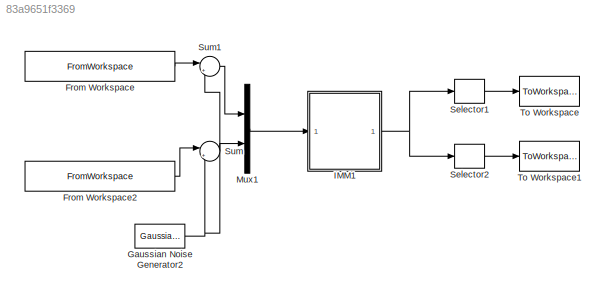
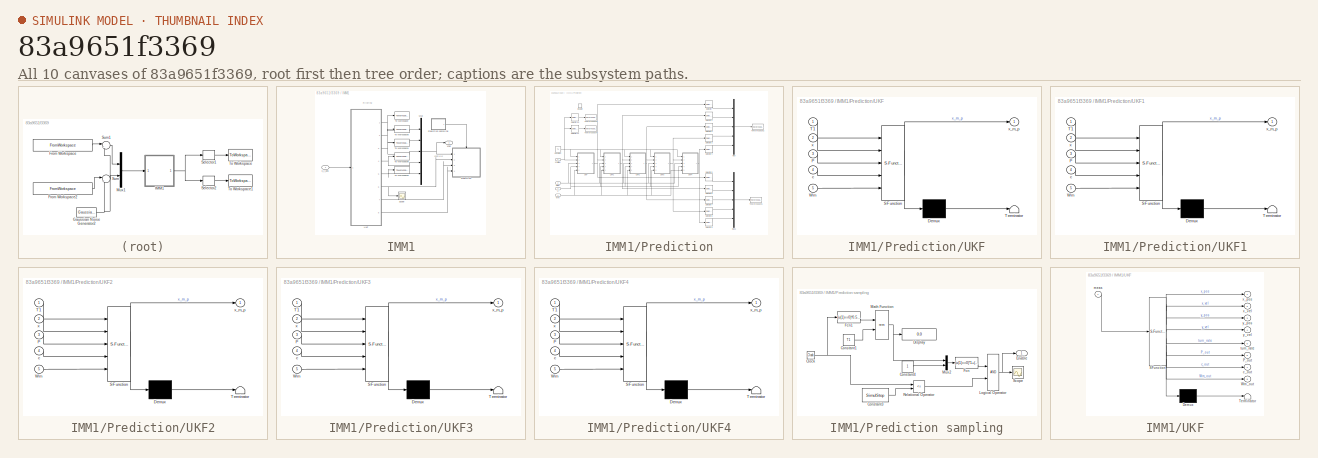
[diagram: thumbnail index - all 10 canvases of the model, root first then tree order]
MODEL slx_83a9651f3369
KIND model
BLOCK [FromWorkspace] From Workspace
  SampleTime = 0
  VariableName = [obv_traj1(:,1),obv_traj1(:,2)]
BLOCK [FromWorkspace] From Workspace2
  SampleTime = 0
  VariableName = [obv_traj1(:,1),obv_traj1(:,3)]
BLOCK [Reference] Gaussian Noise Generator2  REF=commnoisgen2/Gaussian Noise
Generator
  Ports = [0, 1]
  SourceBlock = commnoisgen2/Gaussian Noise\nGenerator
  SourceType = Gaussian Noise Generator
  Ts = 0.05
  d = noise
  frameBased = off
  m = 0
  orient = off
  outDataType = double
  s = 0
  sampPerFrame = 1
BLOCK [SubSystem] IMM1
  FunctionWithSeparateData = off
  MaskHideContents = off
  MinAlgLoopOccurrences = off
  Opaque = off
  Ports = [1, 1]
  PropExecContextOutsideSubsystem = off
  RTWSystemCode = Auto
  RequestExecContextInheritance = off
BLOCK [Mux] IMM1/Mux
  DisplayOption = bar
  Inputs = 5
  Ports = [5, 1]
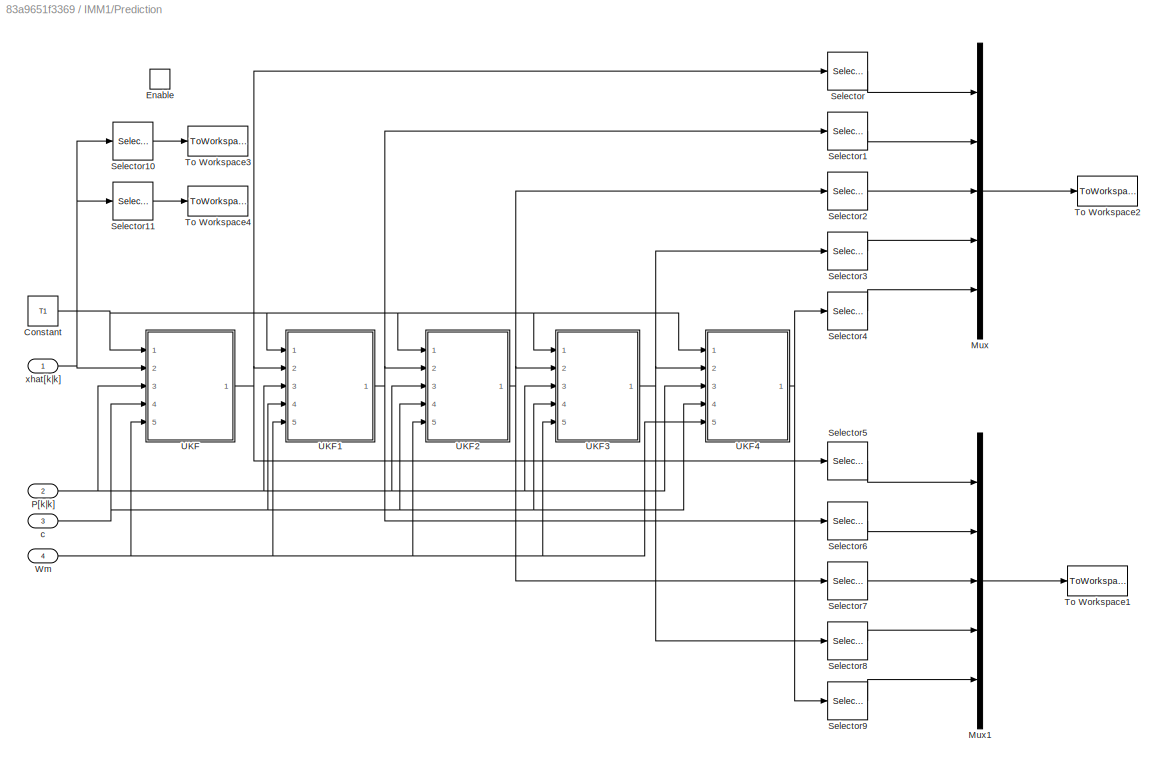
BLOCK [SubSystem] IMM1/Prediction
  FunctionWithSeparateData = off
  MaskHideContents = off
  MinAlgLoopOccurrences = off
  Opaque = off
  Ports = [4, 0, 1]
  PropExecContextOutsideSubsystem = off
  RTWSystemCode = Auto
  RequestExecContextInheritance = off
BLOCK [SubSystem] IMM1/Prediction sampling
  FunctionWithSeparateData = off
  MaskHideContents = off
  MinAlgLoopOccurrences = off
  Opaque = off
  Ports = [0, 1]
  PropExecContextOutsideSubsystem = off
  RTWSystemCode = Auto
  RequestExecContextInheritance = off
BLOCK [Clock] IMM1/Prediction sampling/Clock
BLOCK [Constant] IMM1/Prediction sampling/Constant1
  Value = T1
BLOCK [Constant] IMM1/Prediction sampling/Constant3
  Value = SimulStop
BLOCK [Constant] IMM1/Prediction sampling/Constant4
BLOCK [Display] IMM1/Prediction sampling/Display
  Decimation = 1
  Lockdown = off
  Ports = [1]
BLOCK [Outport] IMM1/Prediction sampling/Enable
  IconDisplay = Port number
BLOCK [Fcn] IMM1/Prediction sampling/Fcn
  Expr = (u(1)==0)*1+(!u(1)==0)*0
BLOCK [Fcn] IMM1/Prediction sampling/Fcn1
  Expr = (u(1)==0)*0.5+(!u(1)==0)*u(1)
BLOCK [Logic] IMM1/Prediction sampling/Logical Operator
  AllPortsSameDT = off
  OutDataTypeStr = boolean
  Ports = [2, 1]
BLOCK [Math] IMM1/Prediction sampling/Math Function
  Operator = rem
  Ports = [2, 1]
BLOCK [Mux] IMM1/Prediction sampling/Mux2
  DisplayOption = bar
  Inputs = 2
  Ports = [2, 1]
BLOCK [RelationalOperator] IMM1/Prediction sampling/Relational Operator
  InputSameDT = off
  Operator = <=
  OutDataTypeStr = boolean
  Ports = [2, 1]
BLOCK [Scope] IMM1/Prediction sampling/Scope
  DataFormat = StructureWithTime
  Floating = off
  NumInputPorts = 1
  Ports = [1]
  SampleTime = 0
  SaveName = ScopeData2
  ShowLegends = off
BLOCK [Constant] IMM1/Prediction/Constant
  Value = T1
BLOCK [EnablePort] IMM1/Prediction/Enable
  Ports = []
BLOCK [Mux] IMM1/Prediction/Mux
  DisplayOption = bar
  Inputs = 5
  Ports = [5, 1]
BLOCK [Mux] IMM1/Prediction/Mux1
  DisplayOption = bar
  Inputs = 5
  Ports = [5, 1]
BLOCK [Inport] IMM1/Prediction/P[k|k]
  IconDisplay = Port number
  Port = 2
BLOCK [Selector] IMM1/Prediction/Selector
  IndexOptions = Index vector (dialog)
  Indices = [1]
  InputPortWidth = 5
  OutputSizes = 1
  Ports = [1, 1]
BLOCK [Selector] IMM1/Prediction/Selector1
  IndexOptions = Index vector (dialog)
  Indices = [1]
  InputPortWidth = 5
  OutputSizes = 1
  Ports = [1, 1]
BLOCK [Selector] IMM1/Prediction/Selector10
  IndexOptions = Index vector (dialog)
  Indices = [1]
  InputPortWidth = 5
  OutputSizes = 1
  Ports = [1, 1]
BLOCK [Selector] IMM1/Prediction/Selector11
  IndexOptions = Index vector (dialog)
  Indices = [3]
  InputPortWidth = 5
  OutputSizes = 1
  Ports = [1, 1]
BLOCK [Selector] IMM1/Prediction/Selector2
  IndexOptions = Index vector (dialog)
  Indices = [1]
  InputPortWidth = 5
  OutputSizes = 1
  Ports = [1, 1]
BLOCK [Selector] IMM1/Prediction/Selector3
  IndexOptions = Index vector (dialog)
  Indices = [1]
  InputPortWidth = 5
  OutputSizes = 1
  Ports = [1, 1]
BLOCK [Selector] IMM1/Prediction/Selector4
  IndexOptions = Index vector (dialog)
  Indices = [1]
  InputPortWidth = 5
  OutputSizes = 1
  Ports = [1, 1]
BLOCK [Selector] IMM1/Prediction/Selector5
  IndexOptions = Index vector (dialog)
  Indices = [3]
  InputPortWidth = 5
  OutputSizes = 1
  Ports = [1, 1]
BLOCK [Selector] IMM1/Prediction/Selector6
  IndexOptions = Index vector (dialog)
  Indices = [3]
  InputPortWidth = 5
  OutputSizes = 1
  Ports = [1, 1]
BLOCK [Selector] IMM1/Prediction/Selector7
  IndexOptions = Index vector (dialog)
  Indices = [3]
  InputPortWidth = 5
  OutputSizes = 1
  Ports = [1, 1]
BLOCK [Selector] IMM1/Prediction/Selector8
  IndexOptions = Index vector (dialog)
  Indices = [3]
  InputPortWidth = 5
  OutputSizes = 1
  Ports = [1, 1]
BLOCK [Selector] IMM1/Prediction/Selector9
  IndexOptions = Index vector (dialog)
  Indices = [3]
  InputPortWidth = 5
  OutputSizes = 1
  Ports = [1, 1]
BLOCK [ToWorkspace] IMM1/Prediction/To Workspace1
  MaxDataPoints = inf
  Ports = [1]
  SampleTime = -1
  VariableName = y_pos_pre
BLOCK [ToWorkspace] IMM1/Prediction/To Workspace2
  MaxDataPoints = inf
  Ports = [1]
  SampleTime = -1
  VariableName = x_pos_pre
BLOCK [ToWorkspace] IMM1/Prediction/To Workspace3
  MaxDataPoints = inf
  Ports = [1]
  SampleTime = -1
  VariableName = x_pos_est
BLOCK [ToWorkspace] IMM1/Prediction/To Workspace4
  MaxDataPoints = inf
  Ports = [1]
  SampleTime = -1
  VariableName = y_pos_est
BLOCK [SubSystem] IMM1/Prediction/UKF
  ErrorFcn = Stateflow.Translate.translate
  FunctionWithSeparateData = off
  MaskHideContents = off
  MinAlgLoopOccurrences = off
  Opaque = off
  PermitHierarchicalResolution = ExplicitOnly
  Ports = [5, 1]
  PropExecContextOutsideSubsystem = off
  RTWSystemCode = Auto
  RequestExecContextInheritance = off
  SFBlockType = MATLAB Function
  TreatAsAtomicUnit = on
BLOCK [Demux] IMM1/Prediction/UKF/ Demux 
  Outputs = 1
  Ports = [1, 1]
BLOCK [S-Function] IMM1/Prediction/UKF/ SFunction 
  EnableBusSupport = on
  FunctionName = sf_sfun
  PortCounts = [5 2]
  Ports = [5, 2]
  Tag = Stateflow S-Function UKF 3
BLOCK [Terminator] IMM1/Prediction/UKF/ Terminator 
BLOCK [Inport] IMM1/Prediction/UKF/P
  IconDisplay = Port number
  Port = 3
BLOCK [Inport] IMM1/Prediction/UKF/T1
  IconDisplay = Port number
BLOCK [Inport] IMM1/Prediction/UKF/Wm
  IconDisplay = Port number
  Port = 5
BLOCK [Inport] IMM1/Prediction/UKF/c
  IconDisplay = Port number
  Port = 4
BLOCK [Inport] IMM1/Prediction/UKF/x
  IconDisplay = Port number
  Port = 2
BLOCK [Outport] IMM1/Prediction/UKF/x_m_p
  IconDisplay = Port number
BLOCK [SubSystem] IMM1/Prediction/UKF1
  ErrorFcn = Stateflow.Translate.translate
  FunctionWithSeparateData = off
  MaskHideContents = off
  MinAlgLoopOccurrences = off
  Opaque = off
  PermitHierarchicalResolution = ExplicitOnly
  Ports = [5, 1]
  PropExecContextOutsideSubsystem = off
  RTWSystemCode = Auto
  RequestExecContextInheritance = off
  SFBlockType = MATLAB Function
  TreatAsAtomicUnit = on
BLOCK [Demux] IMM1/Prediction/UKF1/ Demux 
  Outputs = 1
  Ports = [1, 1]
BLOCK [S-Function] IMM1/Prediction/UKF1/ SFunction 
  EnableBusSupport = on
  FunctionName = sf_sfun
  PortCounts = [5 2]
  Ports = [5, 2]
  Tag = Stateflow S-Function UKF 4
BLOCK [Terminator] IMM1/Prediction/UKF1/ Terminator 
BLOCK [Inport] IMM1/Prediction/UKF1/P
  IconDisplay = Port number
  Port = 3
BLOCK [Inport] IMM1/Prediction/UKF1/T1
  IconDisplay = Port number
BLOCK [Inport] IMM1/Prediction/UKF1/Wm
  IconDisplay = Port number
  Port = 5
BLOCK [Inport] IMM1/Prediction/UKF1/c
  IconDisplay = Port number
  Port = 4
BLOCK [Inport] IMM1/Prediction/UKF1/x
  IconDisplay = Port number
  Port = 2
BLOCK [Outport] IMM1/Prediction/UKF1/x_m_p
  IconDisplay = Port number
BLOCK [SubSystem] IMM1/Prediction/UKF2
  ErrorFcn = Stateflow.Translate.translate
  FunctionWithSeparateData = off
  MaskHideContents = off
  MinAlgLoopOccurrences = off
  Opaque = off
  PermitHierarchicalResolution = ExplicitOnly
  Ports = [5, 1]
  PropExecContextOutsideSubsystem = off
  RTWSystemCode = Auto
  RequestExecContextInheritance = off
  SFBlockType = MATLAB Function
  TreatAsAtomicUnit = on
BLOCK [Demux] IMM1/Prediction/UKF2/ Demux 
  Outputs = 1
  Ports = [1, 1]
BLOCK [S-Function] IMM1/Prediction/UKF2/ SFunction 
  EnableBusSupport = on
  FunctionName = sf_sfun
  PortCounts = [5 2]
  Ports = [5, 2]
  Tag = Stateflow S-Function UKF 5
BLOCK [Terminator] IMM1/Prediction/UKF2/ Terminator 
BLOCK [Inport] IMM1/Prediction/UKF2/P
  IconDisplay = Port number
  Port = 3
BLOCK [Inport] IMM1/Prediction/UKF2/T1
  IconDisplay = Port number
BLOCK [Inport] IMM1/Prediction/UKF2/Wm
  IconDisplay = Port number
  Port = 5
BLOCK [Inport] IMM1/Prediction/UKF2/c
  IconDisplay = Port number
  Port = 4
BLOCK [Inport] IMM1/Prediction/UKF2/x
  IconDisplay = Port number
  Port = 2
BLOCK [Outport] IMM1/Prediction/UKF2/x_m_p
  IconDisplay = Port number
BLOCK [SubSystem] IMM1/Prediction/UKF3
  ErrorFcn = Stateflow.Translate.translate
  FunctionWithSeparateData = off
  MaskHideContents = off
  MinAlgLoopOccurrences = off
  Opaque = off
  PermitHierarchicalResolution = ExplicitOnly
  Ports = [5, 1]
  PropExecContextOutsideSubsystem = off
  RTWSystemCode = Auto
  RequestExecContextInheritance = off
  SFBlockType = MATLAB Function
  TreatAsAtomicUnit = on
BLOCK [Demux] IMM1/Prediction/UKF3/ Demux 
  Outputs = 1
  Ports = [1, 1]
BLOCK [S-Function] IMM1/Prediction/UKF3/ SFunction 
  EnableBusSupport = on
  FunctionName = sf_sfun
  PortCounts = [5 2]
  Ports = [5, 2]
  Tag = Stateflow S-Function UKF 6
BLOCK [Terminator] IMM1/Prediction/UKF3/ Terminator 
BLOCK [Inport] IMM1/Prediction/UKF3/P
  IconDisplay = Port number
  Port = 3
BLOCK [Inport] IMM1/Prediction/UKF3/T1
  IconDisplay = Port number
BLOCK [Inport] IMM1/Prediction/UKF3/Wm
  IconDisplay = Port number
  Port = 5
BLOCK [Inport] IMM1/Prediction/UKF3/c
  IconDisplay = Port number
  Port = 4
BLOCK [Inport] IMM1/Prediction/UKF3/x
  IconDisplay = Port number
  Port = 2
BLOCK [Outport] IMM1/Prediction/UKF3/x_m_p
  IconDisplay = Port number
BLOCK [SubSystem] IMM1/Prediction/UKF4
  ErrorFcn = Stateflow.Translate.translate
  FunctionWithSeparateData = off
  MaskHideContents = off
  MinAlgLoopOccurrences = off
  Opaque = off
  PermitHierarchicalResolution = ExplicitOnly
  Ports = [5, 1]
  PropExecContextOutsideSubsystem = off
  RTWSystemCode = Auto
  RequestExecContextInheritance = off
  SFBlockType = MATLAB Function
  TreatAsAtomicUnit = on
BLOCK [Demux] IMM1/Prediction/UKF4/ Demux 
  Outputs = 1
  Ports = [1, 1]
BLOCK [S-Function] IMM1/Prediction/UKF4/ SFunction 
  EnableBusSupport = on
  FunctionName = sf_sfun
  PortCounts = [5 2]
  Ports = [5, 2]
  Tag = Stateflow S-Function UKF 7
BLOCK [Terminator] IMM1/Prediction/UKF4/ Terminator 
BLOCK [Inport] IMM1/Prediction/UKF4/P
  IconDisplay = Port number
  Port = 3
BLOCK [Inport] IMM1/Prediction/UKF4/T1
  IconDisplay = Port number
BLOCK [Inport] IMM1/Prediction/UKF4/Wm
  IconDisplay = Port number
  Port = 5
BLOCK [Inport] IMM1/Prediction/UKF4/c
  IconDisplay = Port number
  Port = 4
BLOCK [Inport] IMM1/Prediction/UKF4/x
  IconDisplay = Port number
  Port = 2
BLOCK [Outport] IMM1/Prediction/UKF4/x_m_p
  IconDisplay = Port number
BLOCK [Inport] IMM1/Prediction/Wm
  IconDisplay = Port number
  Port = 4
BLOCK [Inport] IMM1/Prediction/c
  IconDisplay = Port number
  Port = 3
BLOCK [Inport] IMM1/Prediction/xhat[k|k]
  IconDisplay = Port number
BLOCK [Scope] IMM1/Scope
  DataFormat = StructureWithTime
  Floating = off
  NumInputPorts = 1
  Ports = [1]
  SampleTime = 0
  SaveName = ScopeData3
  ShowLegends = off
BLOCK [ToWorkspace] IMM1/To Workspace
  MaxDataPoints = inf
  Ports = [1]
  SampleTime = -1
  VariableName = x_pos_s
BLOCK [ToWorkspace] IMM1/To Workspace1
  MaxDataPoints = inf
  Ports = [1]
  SampleTime = -1
  VariableName = y_pos_s
BLOCK [ToWorkspace] IMM1/To Workspace2
  MaxDataPoints = inf
  Ports = [1]
  SampleTime = -1
  VariableName = turn_rate_s
BLOCK [ToWorkspace] IMM1/To Workspace5
  MaxDataPoints = inf
  Ports = [1]
  SampleTime = -1
  VariableName = x_spd_s
BLOCK [ToWorkspace] IMM1/To Workspace6
  MaxDataPoints = inf
  Ports = [1]
  SampleTime = -1
  VariableName = y_spd_s
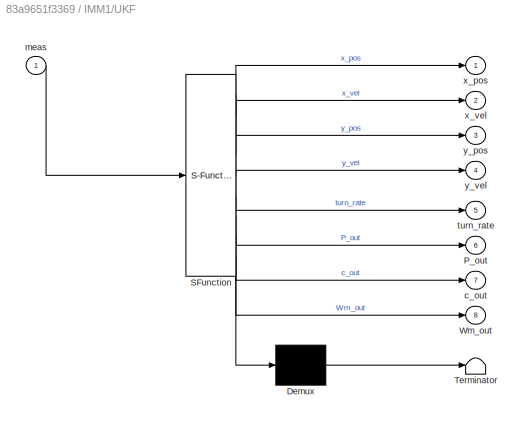
BLOCK [SubSystem] IMM1/UKF
  ErrorFcn = Stateflow.Translate.translate
  FunctionWithSeparateData = off
  MaskHideContents = off
  MinAlgLoopOccurrences = off
  Opaque = off
  PermitHierarchicalResolution = ExplicitOnly
  Ports = [1, 8]
  PropExecContextOutsideSubsystem = off
  RTWSystemCode = Auto
  RequestExecContextInheritance = off
  SFBlockType = MATLAB Function
  TreatAsAtomicUnit = on
BLOCK [Demux] IMM1/UKF/ Demux 
  Outputs = 1
  Ports = [1, 1]
BLOCK [S-Function] IMM1/UKF/ SFunction 
  EnableBusSupport = on
  FunctionName = sf_sfun
  PortCounts = [1 9]
  Ports = [1, 9]
  Tag = Stateflow S-Function UKF 2
BLOCK [Terminator] IMM1/UKF/ Terminator 
BLOCK [Outport] IMM1/UKF/P_out
  IconDisplay = Port number
  Port = 6
BLOCK [Outport] IMM1/UKF/Wm_out
  IconDisplay = Port number
  Port = 8
BLOCK [Outport] IMM1/UKF/c_out
  IconDisplay = Port number
  Port = 7
BLOCK [Inport] IMM1/UKF/meas
  IconDisplay = Port number
BLOCK [Outport] IMM1/UKF/turn_rate
  IconDisplay = Port number
  Port = 5
BLOCK [Outport] IMM1/UKF/x_pos
  IconDisplay = Port number
BLOCK [Outport] IMM1/UKF/x_vel
  IconDisplay = Port number
  Port = 2
BLOCK [Outport] IMM1/UKF/y_pos
  IconDisplay = Port number
  Port = 3
BLOCK [Outport] IMM1/UKF/y_vel
  IconDisplay = Port number
  Port = 4
BLOCK [Inport] IMM1/x_y_pos
  IconDisplay = Port number
BLOCK [Outport] IMM1/xhat
  IconDisplay = Port number
BLOCK [Mux] Mux1
  DisplayOption = bar
  Inputs = 2
  Ports = [2, 1]
BLOCK [Selector] Selector1
  IndexOptions = Index vector (dialog)
  Indices = [1 2]
  InputPortWidth = 5
  OutputSizes = 1
  Ports = [1, 1]
BLOCK [Selector] Selector2
  IndexOptions = Index vector (dialog)
  Indices = [3 4]
  InputPortWidth = 5
  OutputSizes = 1
  Ports = [1, 1]
BLOCK [Sum] Sum
  IconShape = round
  InputSameDT = off
  Inputs = |++
  OutDataTypeStr = Inherit: Inherit via internal rule
  Ports = [2, 1]
  SaturateOnIntegerOverflow = off
BLOCK [Sum] Sum1
  IconShape = round
  InputSameDT = off
  Inputs = |++
  OutDataTypeStr = Inherit: Inherit via internal rule
  Ports = [2, 1]
  SaturateOnIntegerOverflow = off
BLOCK [ToWorkspace] To Workspace
  MaxDataPoints = inf
  Ports = [1]
  SampleTime = -1
  VariableName = x_est
BLOCK [ToWorkspace] To Workspace1
  MaxDataPoints = inf
  Ports = [1]
  SampleTime = -1
  VariableName = y_est
ANNOTATION IMM1: Filtering
ANNOTATION IMM1: xhat[k|k]
LINE From Workspace2:1 -> Sum:1
LINE From Workspace:1 -> Sum1:1
NET Gaussian Noise Generator2:1 -> Sum1:2, Sum:2
NET IMM1/Mux:1 -> IMM1/Prediction:1, IMM1/xhat:1
NET IMM1/Prediction sampling/Clock:1 -> IMM1/Prediction sampling/Fcn1:1, IMM1/Prediction sampling/Relational Operator:1
LINE IMM1/Prediction sampling/Constant1:1 -> IMM1/Prediction sampling/Math Function:2
LINE IMM1/Prediction sampling/Constant3:1 -> IMM1/Prediction sampling/Relational Operator:2
LINE IMM1/Prediction sampling/Constant4:1 -> IMM1/Prediction sampling/Mux2:2
LINE IMM1/Prediction sampling/Fcn1:1 -> IMM1/Prediction sampling/Math Function:1
LINE IMM1/Prediction sampling/Fcn:1 -> IMM1/Prediction sampling/Logical Operator:1
NET IMM1/Prediction sampling/Logical Operator:1 -> IMM1/Prediction sampling/Enable:1, IMM1/Prediction sampling/Scope:1
NET IMM1/Prediction sampling/Math Function:1 -> IMM1/Prediction sampling/Display:1, IMM1/Prediction sampling/Mux2:1
LINE IMM1/Prediction sampling/Mux2:1 -> IMM1/Prediction sampling/Fcn:1
LINE IMM1/Prediction sampling/Relational Operator:1 -> IMM1/Prediction sampling/Logical Operator:2
LINE IMM1/Prediction sampling:1 -> IMM1/Prediction:enable
NET IMM1/Prediction/Constant:1 -> IMM1/Prediction/UKF1:1, IMM1/Prediction/UKF2:1, IMM1/Prediction/UKF3:1, IMM1/Prediction/UKF4:1, IMM1/Prediction/UKF:1
LINE IMM1/Prediction/Mux1:1 -> IMM1/Prediction/To Workspace1:1
LINE IMM1/Prediction/Mux:1 -> IMM1/Prediction/To Workspace2:1
NET IMM1/Prediction/P[k|k]:1 -> IMM1/Prediction/UKF1:3, IMM1/Prediction/UKF2:3, IMM1/Prediction/UKF3:3, IMM1/Prediction/UKF4:3, IMM1/Prediction/UKF:3
LINE IMM1/Prediction/Selector10:1 -> IMM1/Prediction/To Workspace3:1
LINE IMM1/Prediction/Selector11:1 -> IMM1/Prediction/To Workspace4:1
LINE IMM1/Prediction/Selector1:1 -> IMM1/Prediction/Mux:2
LINE IMM1/Prediction/Selector2:1 -> IMM1/Prediction/Mux:3
LINE IMM1/Prediction/Selector3:1 -> IMM1/Prediction/Mux:4
LINE IMM1/Prediction/Selector4:1 -> IMM1/Prediction/Mux:5
LINE IMM1/Prediction/Selector5:1 -> IMM1/Prediction/Mux1:1
LINE IMM1/Prediction/Selector6:1 -> IMM1/Prediction/Mux1:2
LINE IMM1/Prediction/Selector7:1 -> IMM1/Prediction/Mux1:3
LINE IMM1/Prediction/Selector8:1 -> IMM1/Prediction/Mux1:4
LINE IMM1/Prediction/Selector9:1 -> IMM1/Prediction/Mux1:5
LINE IMM1/Prediction/Selector:1 -> IMM1/Prediction/Mux:1
NET IMM1/Prediction/UKF1:1 -> IMM1/Prediction/Selector1:1, IMM1/Prediction/Selector6:1, IMM1/Prediction/UKF2:2
NET IMM1/Prediction/UKF2:1 -> IMM1/Prediction/Selector2:1, IMM1/Prediction/Selector7:1, IMM1/Prediction/UKF3:2
NET IMM1/Prediction/UKF3:1 -> IMM1/Prediction/Selector3:1, IMM1/Prediction/Selector8:1, IMM1/Prediction/UKF4:2
NET IMM1/Prediction/UKF4:1 -> IMM1/Prediction/Selector4:1, IMM1/Prediction/Selector9:1
NET IMM1/Prediction/UKF:1 -> IMM1/Prediction/Selector5:1, IMM1/Prediction/Selector:1, IMM1/Prediction/UKF1:2
NET IMM1/Prediction/Wm:1 -> IMM1/Prediction/UKF1:5, IMM1/Prediction/UKF2:5, IMM1/Prediction/UKF3:5, IMM1/Prediction/UKF4:5, IMM1/Prediction/UKF:5
NET IMM1/Prediction/c:1 -> IMM1/Prediction/UKF1:4, IMM1/Prediction/UKF2:4, IMM1/Prediction/UKF3:4, IMM1/Prediction/UKF4:4, IMM1/Prediction/UKF:4
NET IMM1/Prediction/xhat[k|k]:1 -> IMM1/Prediction/Selector10:1, IMM1/Prediction/Selector11:1, IMM1/Prediction/UKF:2
NET IMM1/UKF:1 -> IMM1/Mux:1, IMM1/To Workspace:1
NET IMM1/UKF:2 -> IMM1/Mux:2, IMM1/To Workspace5:1
NET IMM1/UKF:3 -> IMM1/Mux:3, IMM1/To Workspace1:1
NET IMM1/UKF:4 -> IMM1/Mux:4, IMM1/To Workspace6:1
NET IMM1/UKF:5 -> IMM1/Mux:5, IMM1/To Workspace2:1
NET IMM1/UKF:6 -> IMM1/Prediction:2, IMM1/Scope:1
LINE IMM1/UKF:7 -> IMM1/Prediction:3
LINE IMM1/UKF:8 -> IMM1/Prediction:4
LINE IMM1/x_y_pos:1 -> IMM1/UKF:1
NET IMM1:1 -> Selector1:1, Selector2:1
LINE Mux1:1 -> IMM1:1
LINE Selector1:1 -> To Workspace:1
LINE Selector2:1 -> To Workspace1:1
LINE Sum1:1 -> Mux1:1
LINE Sum:1 -> Mux1:2
note: NET lines group one-source signal fan-out (src -> all destinations, sorted); 1:1 wires keep LINE
